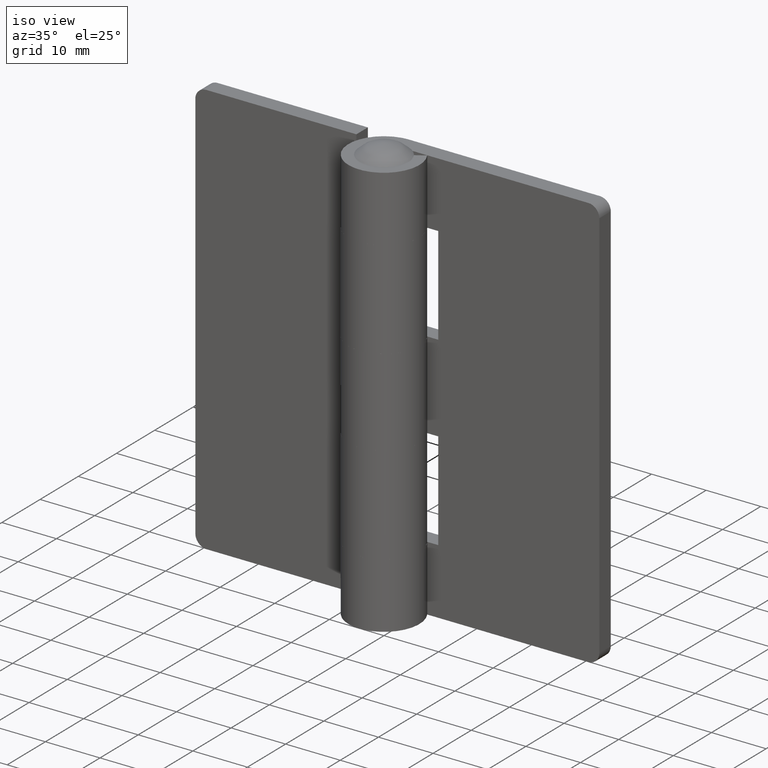
[diagram: clean part render]
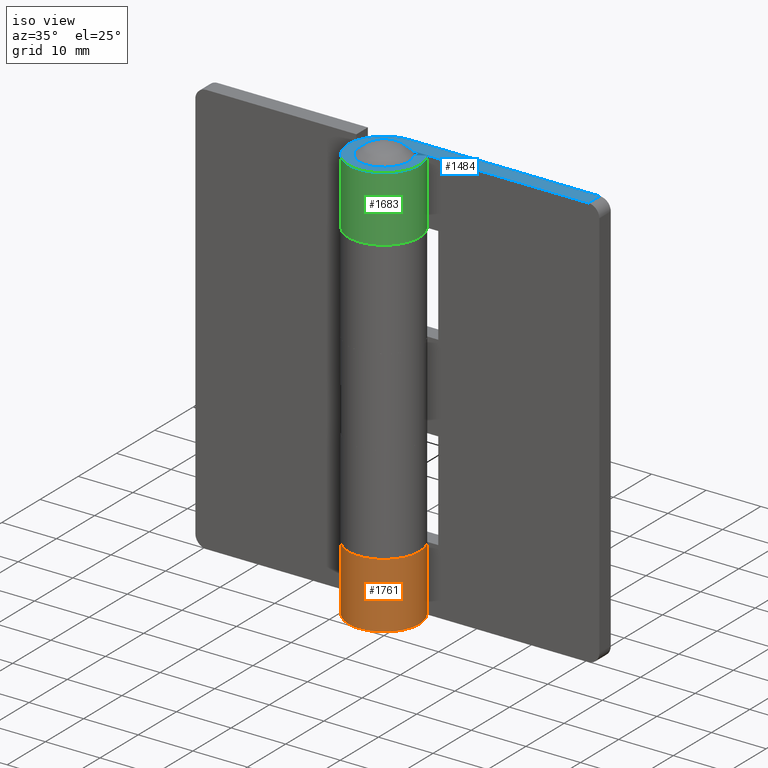
[diagram: same view with three faces highlighted in distinct colors, each labeled with its STEP entity id]
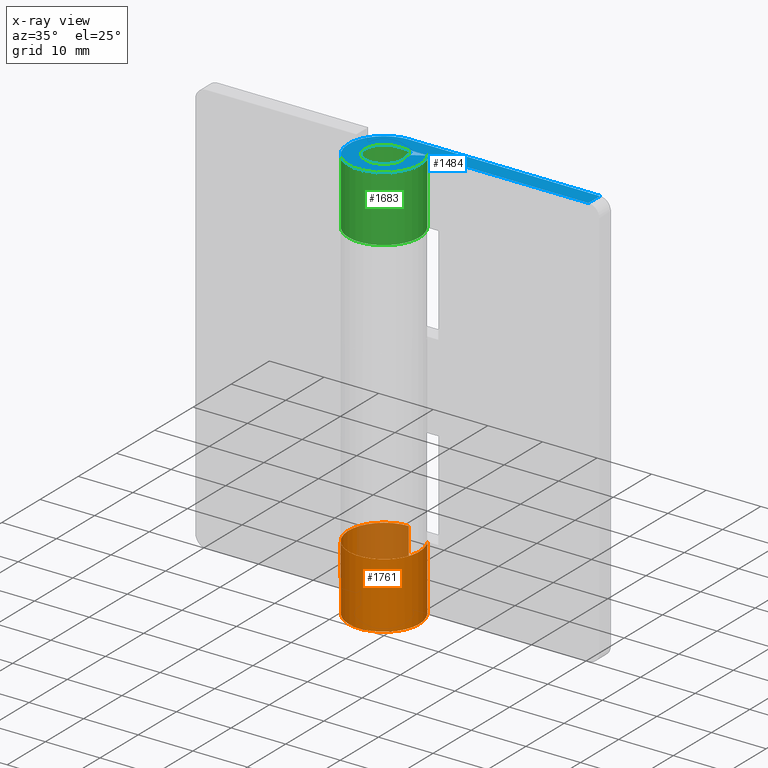
[diagram: x-ray of the same camera — body ghosted, the three highlighted faces saturated]
A machine part, iso view with three faces highlighted in distinct colors.
The next image is the same camera in x-ray (body ghosted, the three faces saturated) — at least one of them is partly hidden behind the body in this view.
Their STEP definitions:

[orange] entity #1761 — the highlighted face is a freeform B-spline surface patch.
#1042=CARTESIAN_POINT('',(-1.193991E-015,6.500000000000000,12.0));
#1043=VERTEX_POINT('',#1042);
#1049=CARTESIAN_POINT('',(5.508856505664310,3.450000000000000,12.0));
#1050=VERTEX_POINT('',#1049);
#1051=CARTESIAN_POINT('',(0.0,6.500000000000000,12.0));
#1052=CARTESIAN_POINT('',(-5.034140810637116,6.500000000000000,12.000000000000002));
#1053=CARTESIAN_POINT('',(-6.293367380542809,1.625892682042621,12.0));
#1054=CARTESIAN_POINT('',(-7.552593950448502,-3.248214635914765,12.000000000000002));
#1055=CARTESIAN_POINT('',(-3.148412298286237,-5.686607072763158,12.0));
#1056=CARTESIAN_POINT('',(1.255769353876027,-8.124999509611552,12.000000000000002));
#1057=CARTESIAN_POINT('',(4.718296452593097,-4.470758166737202,12.0));
#1058=CARTESIAN_POINT('',(8.180823551310164,-0.816516823862857,12.000000000000002));
#1059=CARTESIAN_POINT('',(5.508856505664316,3.449999999999993,12.0));
#1067=(BOUNDED_CURVE()B_SPLINE_CURVE(2,(#1051,#1052,#1053,#1054,#1055,#1056,#1057,#1058,#1059),.UNSPECIFIED.,.F.,.U.)B_SPLINE_CURVE_WITH_KNOTS((3,2,2,2,3),(0.0,0.250000000000000,0.500000000000000,0.750000000000000,1.0),.UNSPECIFIED.)CURVE()GEOMETRIC_REPRESENTATION_ITEM()RATIONAL_B_SPLINE_CURVE((1.0,0.790612843210526,1.0,0.790612843210526,1.0,0.790612843210526,1.0,0.790612843210526,1.0))REPRESENTATION_ITEM(''));
#1068=EDGE_CURVE('',#1043,#1050,#1067,.T.);
#1350=CARTESIAN_POINT('',(-1.193991E-015,6.500000000000000,0.0));
#1351=VERTEX_POINT('',#1350);
#1386=CARTESIAN_POINT('',(5.508856505664310,3.450000000000000,0.0));
#1387=VERTEX_POINT('',#1386);
#1393=CARTESIAN_POINT('',(5.508856505664310,3.450000000000000,0.0));
#1394=CARTESIAN_POINT('',(8.180823551310168,-0.816516823862848,0.0));
#1395=CARTESIAN_POINT('',(4.718296452593100,-4.470758166737199,0.0));
#1396=CARTESIAN_POINT('',(1.255769353876034,-8.124999509611548,0.0));
#1397=CARTESIAN_POINT('',(-3.148412298286228,-5.686607072763162,0.0));
#1398=CARTESIAN_POINT('',(-7.552593950448501,-3.248214635914773,0.0));
#1399=CARTESIAN_POINT('',(-6.293367380542810,1.625892682042617,0.0));
#1400=CARTESIAN_POINT('',(-5.034140810637118,6.500000000000000,0.0));
#1401=CARTESIAN_POINT('',(0.0,6.500000000000000,0.0));
#1409=(BOUNDED_CURVE()B_SPLINE_CURVE(2,(#1393,#1394,#1395,#1396,#1397,#1398,#1399,#1400,#1401),.UNSPECIFIED.,.F.,.U.)B_SPLINE_CURVE_WITH_KNOTS((3,2,2,2,3),(0.0,0.250000000000000,0.500000000000000,0.750000000000000,1.0),.UNSPECIFIED.)CURVE()GEOMETRIC_REPRESENTATION_ITEM()RATIONAL_B_SPLINE_CURVE((1.0,0.790612843210526,1.0,0.790612843210526,1.0,0.790612843210526,1.0,0.790612843210526,1.0))REPRESENTATION_ITEM(''));
#1410=EDGE_CURVE('',#1387,#1351,#1409,.T.);
#1633=CARTESIAN_POINT('',(-1.193991E-015,6.500000000000000,12.0));
#1634=CARTESIAN_POINT('',(-1.193991E-015,6.500000000000000,0.0));
#1635=QUASI_UNIFORM_CURVE('',1,(#1633,#1634),.UNSPECIFIED.,.F.,.U.);
#1636=EDGE_CURVE('',#1043,#1351,#1635,.T.);
#1690=CARTESIAN_POINT('',(5.508856505664310,3.450000000000000,12.0));
#1691=CARTESIAN_POINT('',(5.508856505664310,3.450000000000000,0.0));
#1692=QUASI_UNIFORM_CURVE('',1,(#1690,#1691),.UNSPECIFIED.,.F.,.U.);
#1693=EDGE_CURVE('',#1050,#1387,#1692,.T.);
#1733=CARTESIAN_POINT('',(0.277015332386252,6.494094433069394,12.300000000000001));
#1734=CARTESIAN_POINT('',(0.277015332386252,6.494094433069394,-0.307500000000001));
#1735=CARTESIAN_POINT('',(-7.887180295432386,6.842350435321217,12.300000000000002));
#1736=CARTESIAN_POINT('',(-7.887180295432386,6.842350435321217,-0.307500000000001));
#1737=CARTESIAN_POINT('',(-6.389966104560965,-1.190937942363890,12.300000000000001));
#1738=CARTESIAN_POINT('',(-6.389966104560965,-1.190937942363890,-0.307500000000001));
#1739=CARTESIAN_POINT('',(-4.892751913689542,-9.224226320048999,12.300000000000002));
#1740=CARTESIAN_POINT('',(-4.892751913689542,-9.224226320048999,-0.307500000000001));
#1741=CARTESIAN_POINT('',(2.597843892498850,-5.958288941483653,12.300000000000001));
#1742=CARTESIAN_POINT('',(2.597843892498850,-5.958288941483653,-0.307500000000001));
#1743=CARTESIAN_POINT('',(10.088439698687242,-2.692351562918307,12.300000000000002));
#1744=CARTESIAN_POINT('',(10.088439698687242,-2.692351562918307,-0.307500000000001));
#1745=CARTESIAN_POINT('',(5.221190659284190,3.871584701308174,12.300000000000001));
#1746=CARTESIAN_POINT('',(5.221190659284190,3.871584701308174,-0.307500000000001));
#1754=(BOUNDED_SURFACE()B_SPLINE_SURFACE(1,2,((#1733,#1735,#1737,#1739,#1741,#1743,#1745),(#1734,#1736,#1738,#1740,#1742,#1744,#1746)),.UNSPECIFIED.,.F.,.F.,.U.)B_SPLINE_SURFACE_WITH_KNOTS((2,2),(3,2,2,3),(0.0,12.607500000000000),(0.0,12.540911261256831,25.081822522513669,37.622733783770499),.UNSPECIFIED.)GEOMETRIC_REPRESENTATION_ITEM()RATIONAL_B_SPLINE_SURFACE(((1.0,0.622514636637620,1.0,0.622514636637620,1.0,0.622514636637620,1.0),(1.0,0.622514636637620,1.0,0.622514636637620,1.0,0.622514636637620,1.0)))REPRESENTATION_ITEM('')SURFACE());
#1755=ORIENTED_EDGE('',*,*,#1693,.F.);
#1756=ORIENTED_EDGE('',*,*,#1068,.F.);
#1757=ORIENTED_EDGE('',*,*,#1636,.T.);
#1758=ORIENTED_EDGE('',*,*,#1410,.F.);
#1759=EDGE_LOOP('',(#1755,#1756,#1757,#1758));
#1760=FACE_OUTER_BOUND('',#1759,.T.);
#1761=ADVANCED_FACE('',(#1760),#1754,.T.);

[blue] entity #1484 — the highlighted face is a freeform B-spline surface patch.
#885=CARTESIAN_POINT('',(34.999985000000102,6.500000000000000,76.0));
#886=VERTEX_POINT('',#885);
#902=CARTESIAN_POINT('',(34.999985000000102,3.500000000000000,76.0));
#903=VERTEX_POINT('',#902);
#904=CARTESIAN_POINT('',(34.999985000000102,3.500000000000000,76.0));
#905=CARTESIAN_POINT('',(34.999985000000102,6.500000000000000,76.0));
#906=QUASI_UNIFORM_CURVE('',1,(#904,#905),.UNSPECIFIED.,.F.,.U.);
#907=EDGE_CURVE('',#903,#886,#906,.T.);
#1415=CARTESIAN_POINT('',(-8.572528604083660,-7.147765938237296,76.0));
#1416=CARTESIAN_POINT('',(37.072891464875163,-7.147765938237296,76.0));
#1417=CARTESIAN_POINT('',(-8.572528604083660,7.149274964982118,76.0));
#1418=CARTESIAN_POINT('',(37.072891464875163,7.149274964982118,76.0));
#1419=B_SPLINE_SURFACE_WITH_KNOTS('',1,1,((#1415,#1417),(#1416,#1418)),.UNSPECIFIED.,.F.,.F.,.U.,(2,2),(2,2),(0.0,45.645420068958813),(0.0,14.297040903219420),.UNSPECIFIED.);
#1420=CARTESIAN_POINT('',(0.0,3.500000000000000,76.0));
#1421=VERTEX_POINT('',#1420);
#1422=CARTESIAN_POINT('',(34.999985000000102,3.500000000000000,76.0));
#1423=CARTESIAN_POINT('',(0.0,3.500000000000000,76.0));
#1424=QUASI_UNIFORM_CURVE('',1,(#1422,#1423),.UNSPECIFIED.,.F.,.U.);
#1425=EDGE_CURVE('',#903,#1421,#1424,.T.);
#1426=ORIENTED_EDGE('',*,*,#1425,.F.);
#1427=ORIENTED_EDGE('',*,*,#907,.T.);
#1428=CARTESIAN_POINT('',(-1.193991E-015,6.500000000000000,76.0));
#1429=VERTEX_POINT('',#1428);
#1430=CARTESIAN_POINT('',(-1.193991E-015,6.500000000000000,76.0));
#1431=CARTESIAN_POINT('',(34.999985000000102,6.500000000000000,76.0));
#1432=QUASI_UNIFORM_CURVE('',1,(#1430,#1431),.UNSPECIFIED.,.F.,.U.);
#1433=EDGE_CURVE('',#1429,#886,#1432,.T.);
#1434=ORIENTED_EDGE('',*,*,#1433,.F.);
#1435=CARTESIAN_POINT('',(5.508856505664310,3.450000000000000,76.0));
#1436=VERTEX_POINT('',#1435);
#1437=CARTESIAN_POINT('',(5.508856505664310,3.450000000000000,76.0));
#1438=CARTESIAN_POINT('',(8.180823551310168,-0.816516823862848,76.0));
#1439=CARTESIAN_POINT('',(4.718296452593100,-4.470758166737199,76.0));
#1440=CARTESIAN_POINT('',(1.255769353876034,-8.124999509611548,76.0));
#1441=CARTESIAN_POINT('',(-3.148412298286228,-5.686607072763162,76.0));
#1442=CARTESIAN_POINT('',(-7.552593950448501,-3.248214635914773,76.0));
#1443=CARTESIAN_POINT('',(-6.293367380542810,1.625892682042617,76.0));
#1444=CARTESIAN_POINT('',(-5.034140810637118,6.500000000000000,76.0));
#1445=CARTESIAN_POINT('',(0.0,6.500000000000000,76.0));
#1453=(BOUNDED_CURVE()B_SPLINE_CURVE(2,(#1437,#1438,#1439,#1440,#1441,#1442,#1443,#1444,#1445),.UNSPECIFIED.,.F.,.U.)B_SPLINE_CURVE_WITH_KNOTS((3,2,2,2,3),(0.0,0.250000000000000,0.500000000000000,0.750000000000000,1.0),.UNSPECIFIED.)CURVE()GEOMETRIC_REPRESENTATION_ITEM()RATIONAL_B_SPLINE_CURVE((1.0,0.790612843210526,1.0,0.790612843210526,1.0,0.790612843210526,1.0,0.790612843210526,1.0))REPRESENTATION_ITEM(''));
#1454=EDGE_CURVE('',#1436,#1429,#1453,.T.);
#1455=ORIENTED_EDGE('',*,*,#1454,.F.);
#1456=CARTESIAN_POINT('',(2.966307349203860,1.857692307692310,76.0));
#1457=VERTEX_POINT('',#1456);
#1458=CARTESIAN_POINT('',(2.966307349203860,1.857692307692310,76.0));
#1459=CARTESIAN_POINT('',(5.508856505664310,3.450000000000000,76.0));
#1460=QUASI_UNIFORM_CURVE('',1,(#1458,#1459),.UNSPECIFIED.,.F.,.U.);
#1461=EDGE_CURVE('',#1457,#1436,#1460,.T.);
#1462=ORIENTED_EDGE('',*,*,#1461,.F.);
#1463=CARTESIAN_POINT('',(2.966307349203858,1.857692307692311,76.0));
#1464=CARTESIAN_POINT('',(4.405058835320861,-0.439662905156915,75.999999999999986));
#1465=CARTESIAN_POINT('',(2.540621166780902,-2.407331320550798,76.0));
#1466=CARTESIAN_POINT('',(0.676183498240944,-4.374999735944681,75.999999999999986));
#1467=CARTESIAN_POINT('',(-1.695298929846431,-3.062019193026318,76.0));
#1468=CARTESIAN_POINT('',(-4.066781357933809,-1.749038650107955,75.999999999999986));
#1469=CARTESIAN_POINT('',(-3.388736281830744,0.875480674946025,76.0));
#1470=CARTESIAN_POINT('',(-2.710691205727680,3.500000000000000,75.999999999999986));
#1471=CARTESIAN_POINT('',(0.0,3.500000000000000,76.0));
#1479=(BOUNDED_CURVE()B_SPLINE_CURVE(2,(#1463,#1464,#1465,#1466,#1467,#1468,#1469,#1470,#1471),.UNSPECIFIED.,.F.,.U.)B_SPLINE_CURVE_WITH_KNOTS((3,2,2,2,3),(0.0,0.250000000000000,0.500000000000000,0.750000000000000,1.0),.UNSPECIFIED.)CURVE()GEOMETRIC_REPRESENTATION_ITEM()RATIONAL_B_SPLINE_CURVE((1.0,0.790612843210526,1.0,0.790612843210526,1.0,0.790612843210526,1.0,0.790612843210526,1.0))REPRESENTATION_ITEM(''));
#1480=EDGE_CURVE('',#1457,#1421,#1479,.T.);
#1481=ORIENTED_EDGE('',*,*,#1480,.T.);
#1482=EDGE_LOOP('',(#1426,#1427,#1434,#1455,#1462,#1481));
#1483=FACE_OUTER_BOUND('',#1482,.T.);
#1484=ADVANCED_FACE('',(#1483),#1419,.T.);

[green] entity #1683 — the highlighted face is a freeform B-spline surface patch.
#1238=CARTESIAN_POINT('',(5.508856505664310,3.450000000000000,64.0));
#1239=VERTEX_POINT('',#1238);
#1245=CARTESIAN_POINT('',(0.0,6.500000000000000,64.0));
#1246=VERTEX_POINT('',#1245);
#1247=CARTESIAN_POINT('',(5.508856505664310,3.450000000000000,64.0));
#1248=CARTESIAN_POINT('',(8.180823551310168,-0.816516823862848,63.999999999999993));
#1249=CARTESIAN_POINT('',(4.718296452593100,-4.470758166737199,64.0));
#1250=CARTESIAN_POINT('',(1.255769353876034,-8.124999509611548,63.999999999999993));
#1251=CARTESIAN_POINT('',(-3.148412298286228,-5.686607072763162,64.0));
#1252=CARTESIAN_POINT('',(-7.552593950448501,-3.248214635914773,63.999999999999993));
#1253=CARTESIAN_POINT('',(-6.293367380542810,1.625892682042617,64.0));
#1254=CARTESIAN_POINT('',(-5.034140810637118,6.500000000000000,63.999999999999993));
#1255=CARTESIAN_POINT('',(0.0,6.500000000000000,64.0));
#1263=(BOUNDED_CURVE()B_SPLINE_CURVE(2,(#1247,#1248,#1249,#1250,#1251,#1252,#1253,#1254,#1255),.UNSPECIFIED.,.F.,.U.)B_SPLINE_CURVE_WITH_KNOTS((3,2,2,2,3),(0.0,0.250000000000000,0.500000000000000,0.750000000000000,1.0),.UNSPECIFIED.)CURVE()GEOMETRIC_REPRESENTATION_ITEM()RATIONAL_B_SPLINE_CURVE((1.0,0.790612843210526,1.0,0.790612843210526,1.0,0.790612843210526,1.0,0.790612843210526,1.0))REPRESENTATION_ITEM(''));
#1264=EDGE_CURVE('',#1239,#1246,#1263,.T.);
#1428=CARTESIAN_POINT('',(-1.193991E-015,6.500000000000000,76.0));
#1429=VERTEX_POINT('',#1428);
#1435=CARTESIAN_POINT('',(5.508856505664310,3.450000000000000,76.0));
#1436=VERTEX_POINT('',#1435);
#1437=CARTESIAN_POINT('',(5.508856505664310,3.450000000000000,76.0));
#1438=CARTESIAN_POINT('',(8.180823551310168,-0.816516823862848,76.0));
#1439=CARTESIAN_POINT('',(4.718296452593100,-4.470758166737199,76.0));
#1440=CARTESIAN_POINT('',(1.255769353876034,-8.124999509611548,76.0));
#1441=CARTESIAN_POINT('',(-3.148412298286228,-5.686607072763162,76.0));
#1442=CARTESIAN_POINT('',(-7.552593950448501,-3.248214635914773,76.0));
#1443=CARTESIAN_POINT('',(-6.293367380542810,1.625892682042617,76.0));
#1444=CARTESIAN_POINT('',(-5.034140810637118,6.500000000000000,76.0));
#1445=CARTESIAN_POINT('',(0.0,6.500000000000000,76.0));
#1453=(BOUNDED_CURVE()B_SPLINE_CURVE(2,(#1437,#1438,#1439,#1440,#1441,#1442,#1443,#1444,#1445),.UNSPECIFIED.,.F.,.U.)B_SPLINE_CURVE_WITH_KNOTS((3,2,2,2,3),(0.0,0.250000000000000,0.500000000000000,0.750000000000000,1.0),.UNSPECIFIED.)CURVE()GEOMETRIC_REPRESENTATION_ITEM()RATIONAL_B_SPLINE_CURVE((1.0,0.790612843210526,1.0,0.790612843210526,1.0,0.790612843210526,1.0,0.790612843210526,1.0))REPRESENTATION_ITEM(''));
#1454=EDGE_CURVE('',#1436,#1429,#1453,.T.);
#1534=CARTESIAN_POINT('',(5.508856505664310,3.450000000000000,76.0));
#1535=CARTESIAN_POINT('',(5.508856505664310,3.450000000000000,64.0));
#1536=QUASI_UNIFORM_CURVE('',1,(#1534,#1535),.UNSPECIFIED.,.F.,.U.);
#1537=EDGE_CURVE('',#1436,#1239,#1536,.T.);
#1645=CARTESIAN_POINT('',(-1.193991E-015,6.500000000000000,76.0));
#1646=CARTESIAN_POINT('',(0.0,6.500000000000000,64.0));
#1647=QUASI_UNIFORM_CURVE('',1,(#1645,#1646),.UNSPECIFIED.,.F.,.U.);
#1648=EDGE_CURVE('',#1429,#1246,#1647,.T.);
#1655=CARTESIAN_POINT('',(0.170150164001184,6.497772612341120,76.300000000000011));
#1656=CARTESIAN_POINT('',(0.170150164001184,6.497772612341120,63.692500000000003));
#1657=CARTESIAN_POINT('',(-7.901828068042892,6.709144801233618,76.300000000000011));
#1658=CARTESIAN_POINT('',(-7.901828068042892,6.709144801233618,63.692500000000010));
#1659=CARTESIAN_POINT('',(-6.384157458059098,-1.221692903600720,76.300000000000011));
#1660=CARTESIAN_POINT('',(-6.384157458059098,-1.221692903600720,63.692500000000003));
#1661=CARTESIAN_POINT('',(-4.866486848075306,-9.152530608435061,76.300000000000011));
#1662=CARTESIAN_POINT('',(-4.866486848075306,-9.152530608435061,63.692500000000010));
#1663=CARTESIAN_POINT('',(2.557146225977617,-5.975868403752578,76.300000000000011));
#1664=CARTESIAN_POINT('',(2.557146225977617,-5.975868403752578,63.692500000000003));
#1665=CARTESIAN_POINT('',(9.980779300030537,-2.799206199070098,76.300000000000011));
#1666=CARTESIAN_POINT('',(9.980779300030537,-2.799206199070098,63.692500000000010));
#1667=CARTESIAN_POINT('',(5.291750869316074,3.774569212121103,76.300000000000011));
#1668=CARTESIAN_POINT('',(5.291750869316074,3.774569212121103,63.692500000000003));
#1676=(BOUNDED_SURFACE()B_SPLINE_SURFACE(1,2,((#1655,#1657,#1659,#1661,#1663,#1665,#1667),(#1656,#1658,#1660,#1662,#1664,#1666,#1668)),.UNSPECIFIED.,.F.,.F.,.U.)B_SPLINE_SURFACE_WITH_KNOTS((2,2),(3,2,2,3),(0.0,12.607500000000019),(0.0,12.447814807346180,24.895629614692371,37.343444422038552),.UNSPECIFIED.)GEOMETRIC_REPRESENTATION_ITEM()RATIONAL_B_SPLINE_SURFACE(((1.0,0.627057105746662,1.0,0.627057105746662,1.0,0.627057105746662,1.0),(1.0,0.627057105746662,1.0,0.627057105746662,1.0,0.627057105746662,1.0)))REPRESENTATION_ITEM('')SURFACE());
#1677=ORIENTED_EDGE('',*,*,#1648,.T.);
#1678=ORIENTED_EDGE('',*,*,#1264,.F.);
#1679=ORIENTED_EDGE('',*,*,#1537,.F.);
#1680=ORIENTED_EDGE('',*,*,#1454,.T.);
#1681=EDGE_LOOP('',(#1677,#1678,#1679,#1680));
#1682=FACE_OUTER_BOUND('',#1681,.T.);
#1683=ADVANCED_FACE('',(#1682),#1676,.T.);